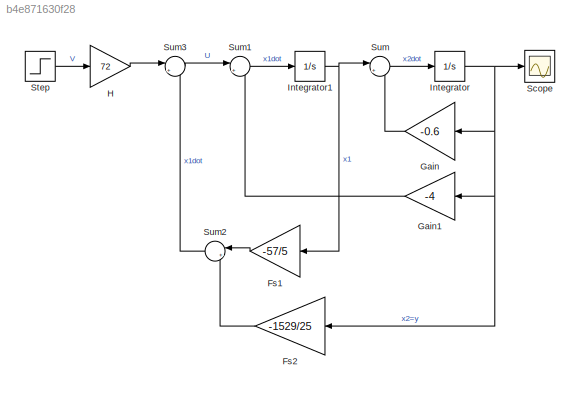
MODEL slx_b4e871630f28
KIND model
CONFIG AbsTol = auto
CONFIG EnableMultiTasking = off
CONFIG FixedStep = auto
CONFIG MaxStep = auto
CONFIG MinStep = auto
CONFIG RelTol = 1e-3
CONFIG SampleTimeConstraint = Unconstrained
CONFIG SolverName = VariableStepAuto
CONFIG StartTime = 0.0
CONFIG StopTime = 10.0
BLOCK [Gain] Fs1
  Gain = -57/5
BLOCK [Gain] Fs2
  Gain = -1529/25
BLOCK [Gain] Gain
  Gain = -0.6
BLOCK [Gain] Gain1
  Gain = -4
BLOCK [Gain] H
  Gain = 72
BLOCK [Integrator] Integrator
BLOCK [Integrator] Integrator1
BLOCK [Scope] Scope
  Floating = off
  NumInputPorts = 1
  ScopeSpecificationString = Simulink.scopes.TimeScopeBlockCfg('CurrentConfiguration', extmgr.ConfigurationSet(extmgr.Configuration('Core','General UI',true),extmgr.Configuration('Core','Source UI',true),extmgr.Configuration('Sources','WiredSimulink',true),extmgr.Configuration('Visuals','Time Domain',true,'SerializedDisplays',{struct('MinYLimReal','-0.12984','MaxYLimReal','1.16852','YLabelReal','','MinYLimMag','0.00000','MaxY...<+1632ch>
BLOCK [Step] Step
  SampleTime = 0
BLOCK [Sum] Sum
  Inputs = |++
BLOCK [Sum] Sum1
  Inputs = |++
BLOCK [Sum] Sum2
  Inputs = |++
BLOCK [Sum] Sum3
  Inputs = |++
LINE Fs1:1 -> Sum2:1
LINE Fs2:1 -> Sum2:2
LINE Gain1:1 -> Sum1:2
LINE Gain:1 -> Sum:2
LINE H:1 -> Sum3:1
NET Integrator1:1 -> Fs1:1, Sum:1
NET Integrator:1 -> Fs2:1, Gain1:1, Gain:1, Scope:1
LINE Step:1 -> H:1
LINE Sum1:1 -> Integrator1:1
LINE Sum2:1 -> Sum3:2
LINE Sum3:1 -> Sum1:1
LINE Sum:1 -> Integrator:1
note: NET lines group one-source signal fan-out (src -> all destinations, sorted); 1:1 wires keep LINE
